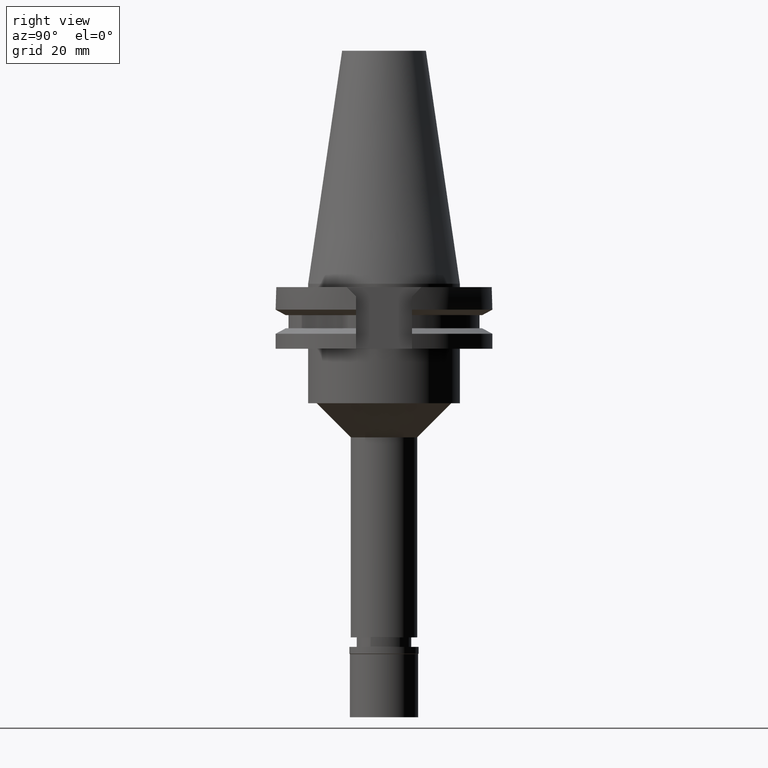
[diagram: clean part render]
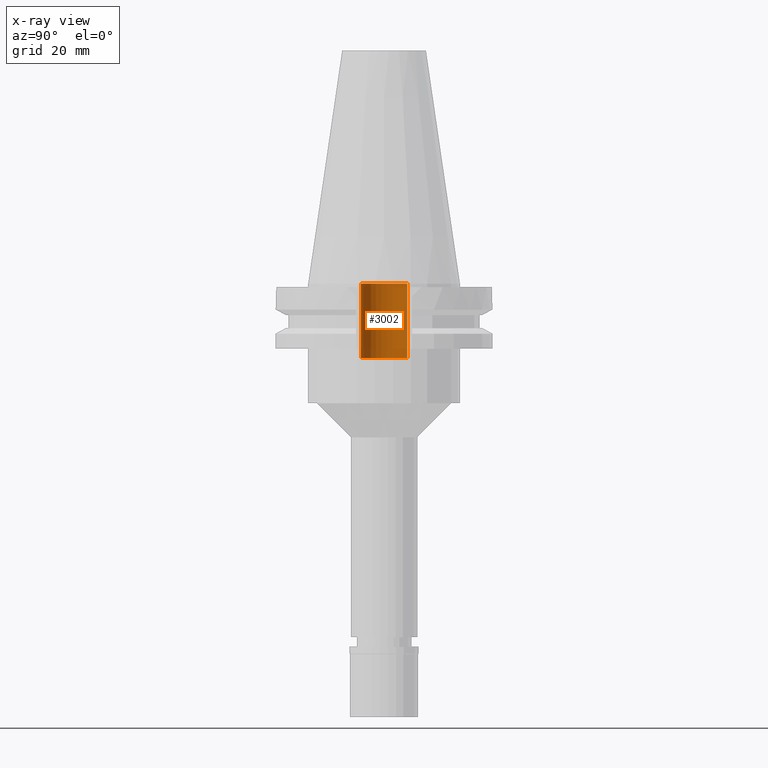
[diagram: x-ray — body ghosted, one internal face saturated and labeled with its STEP entity id]
A machine part, right view, then the same camera in x-ray: the body is ghosted and one INTERNAL B-rep face — a face not visible from any outside direction — is saturated and labeled: STEP entity #3002.
In plain terms, the highlighted cylindrical surface (edge-blend (fillet) strip) has radius 6.8 mm, axis along (0, 0, -1).
Its self-contained STEP definition (entity closure, byte-faithful):
#37 = ORIENTED_EDGE ( 'NONE', *, *, #744, .F. ) ;
#67 = EDGE_CURVE ( 'NONE', #3015, #2998, #2696, .T. ) ;
#129 = LINE ( 'NONE', #890, #2497 ) ;
#297 = DIRECTION ( 'NONE',  ( 0.0000000000000000000, -1.000000000000000000, 0.0000000000000000000 ) ) ;
#322 = CARTESIAN_POINT ( 'NONE',  ( 0.0000000000000000000, 6.799999999999999822, -21.75000000000000000 ) ) ;
#385 = EDGE_CURVE ( 'NONE', #3015, #2006, #129, .T. ) ;
#431 = CYLINDRICAL_SURFACE ( 'NONE', #1858, 6.799999999999999822 ) ;
#449 = DIRECTION ( 'NONE',  ( 0.0000000000000000000, -1.000000000000000000, 0.0000000000000000000 ) ) ;
#583 = VECTOR ( 'NONE', #2057, 1000.000000000000000 ) ;
#691 = FACE_OUTER_BOUND ( 'NONE', #998, .T. ) ;
#744 = EDGE_CURVE ( 'NONE', #2006, #2872, #845, .T. ) ;
#809 = AXIS2_PLACEMENT_3D ( 'NONE', #1495, #2719, #449 ) ;
#845 = CIRCLE ( 'NONE', #2736, 6.799999999999999822 ) ;
#890 = CARTESIAN_POINT ( 'NONE',  ( 0.0000000000000000000, -6.799999999999999822, -21.75000000000000000 ) ) ;
#998 = EDGE_LOOP ( 'NONE', ( #37, #2393, #2517, #1885 ) ) ;
#1235 = CARTESIAN_POINT ( 'NONE',  ( 0.0000000000000000000, 6.799999999999999822, -21.75000000000000000 ) ) ;
#1427 = CARTESIAN_POINT ( 'NONE',  ( 0.0000000000000000000, 0.0000000000000000000, 77.61249999999999716 ) ) ;
#1495 = CARTESIAN_POINT ( 'NONE',  ( 0.0000000000000000000, 0.0000000000000000000, -21.75000000000000000 ) ) ;
#1537 = LINE ( 'NONE', #322, #583 ) ;
#1561 = CARTESIAN_POINT ( 'NONE',  ( 0.0000000000000000000, 0.0000000000000000000, -9.947598300640998705E-14 ) ) ;
#1787 = EDGE_CURVE ( 'NONE', #2998, #2872, #1537, .T. ) ;
#1858 = AXIS2_PLACEMENT_3D ( 'NONE', #1427, #2980, #1959 ) ;
#1859 = CARTESIAN_POINT ( 'NONE',  ( 0.0000000000000000000, 6.799999999999999822, -1.136868377215999875E-13 ) ) ;
#1885 = ORIENTED_EDGE ( 'NONE', *, *, #1787, .T. ) ;
#1959 = DIRECTION ( 'NONE',  ( 0.0000000000000000000, -1.000000000000000000, 0.0000000000000000000 ) ) ;
#2006 = VERTEX_POINT ( 'NONE', #3058 ) ;
#2057 = DIRECTION ( 'NONE',  ( 0.0000000000000000000, 0.0000000000000000000, 1.000000000000000000 ) ) ;
#2393 = ORIENTED_EDGE ( 'NONE', *, *, #385, .F. ) ;
#2497 = VECTOR ( 'NONE', #2711, 1000.000000000000000 ) ;
#2517 = ORIENTED_EDGE ( 'NONE', *, *, #67, .T. ) ;
#2696 = CIRCLE ( 'NONE', #809, 6.799999999999999822 ) ;
#2711 = DIRECTION ( 'NONE',  ( 0.0000000000000000000, 0.0000000000000000000, 1.000000000000000000 ) ) ;
#2719 = DIRECTION ( 'NONE',  ( 0.0000000000000000000, 0.0000000000000000000, -1.000000000000000000 ) ) ;
#2736 = AXIS2_PLACEMENT_3D ( 'NONE', #1561, #3111, #297 ) ;
#2872 = VERTEX_POINT ( 'NONE', #1859 ) ;
#2980 = DIRECTION ( 'NONE',  ( 0.0000000000000000000, 0.0000000000000000000, -1.000000000000000000 ) ) ;
#2998 = VERTEX_POINT ( 'NONE', #1235 ) ;
#3002 = ADVANCED_FACE ( 'NONE', ( #691 ), #431, .F. ) ;
#3015 = VERTEX_POINT ( 'NONE', #3244 ) ;
#3058 = CARTESIAN_POINT ( 'NONE',  ( 0.0000000000000000000, -6.799999999999999822, -1.136868377215999875E-13 ) ) ;
#3111 = DIRECTION ( 'NONE',  ( 0.0000000000000000000, 0.0000000000000000000, -1.000000000000000000 ) ) ;
#3244 = CARTESIAN_POINT ( 'NONE',  ( 0.0000000000000000000, -6.799999999999999822, -21.75000000000000000 ) ) ;